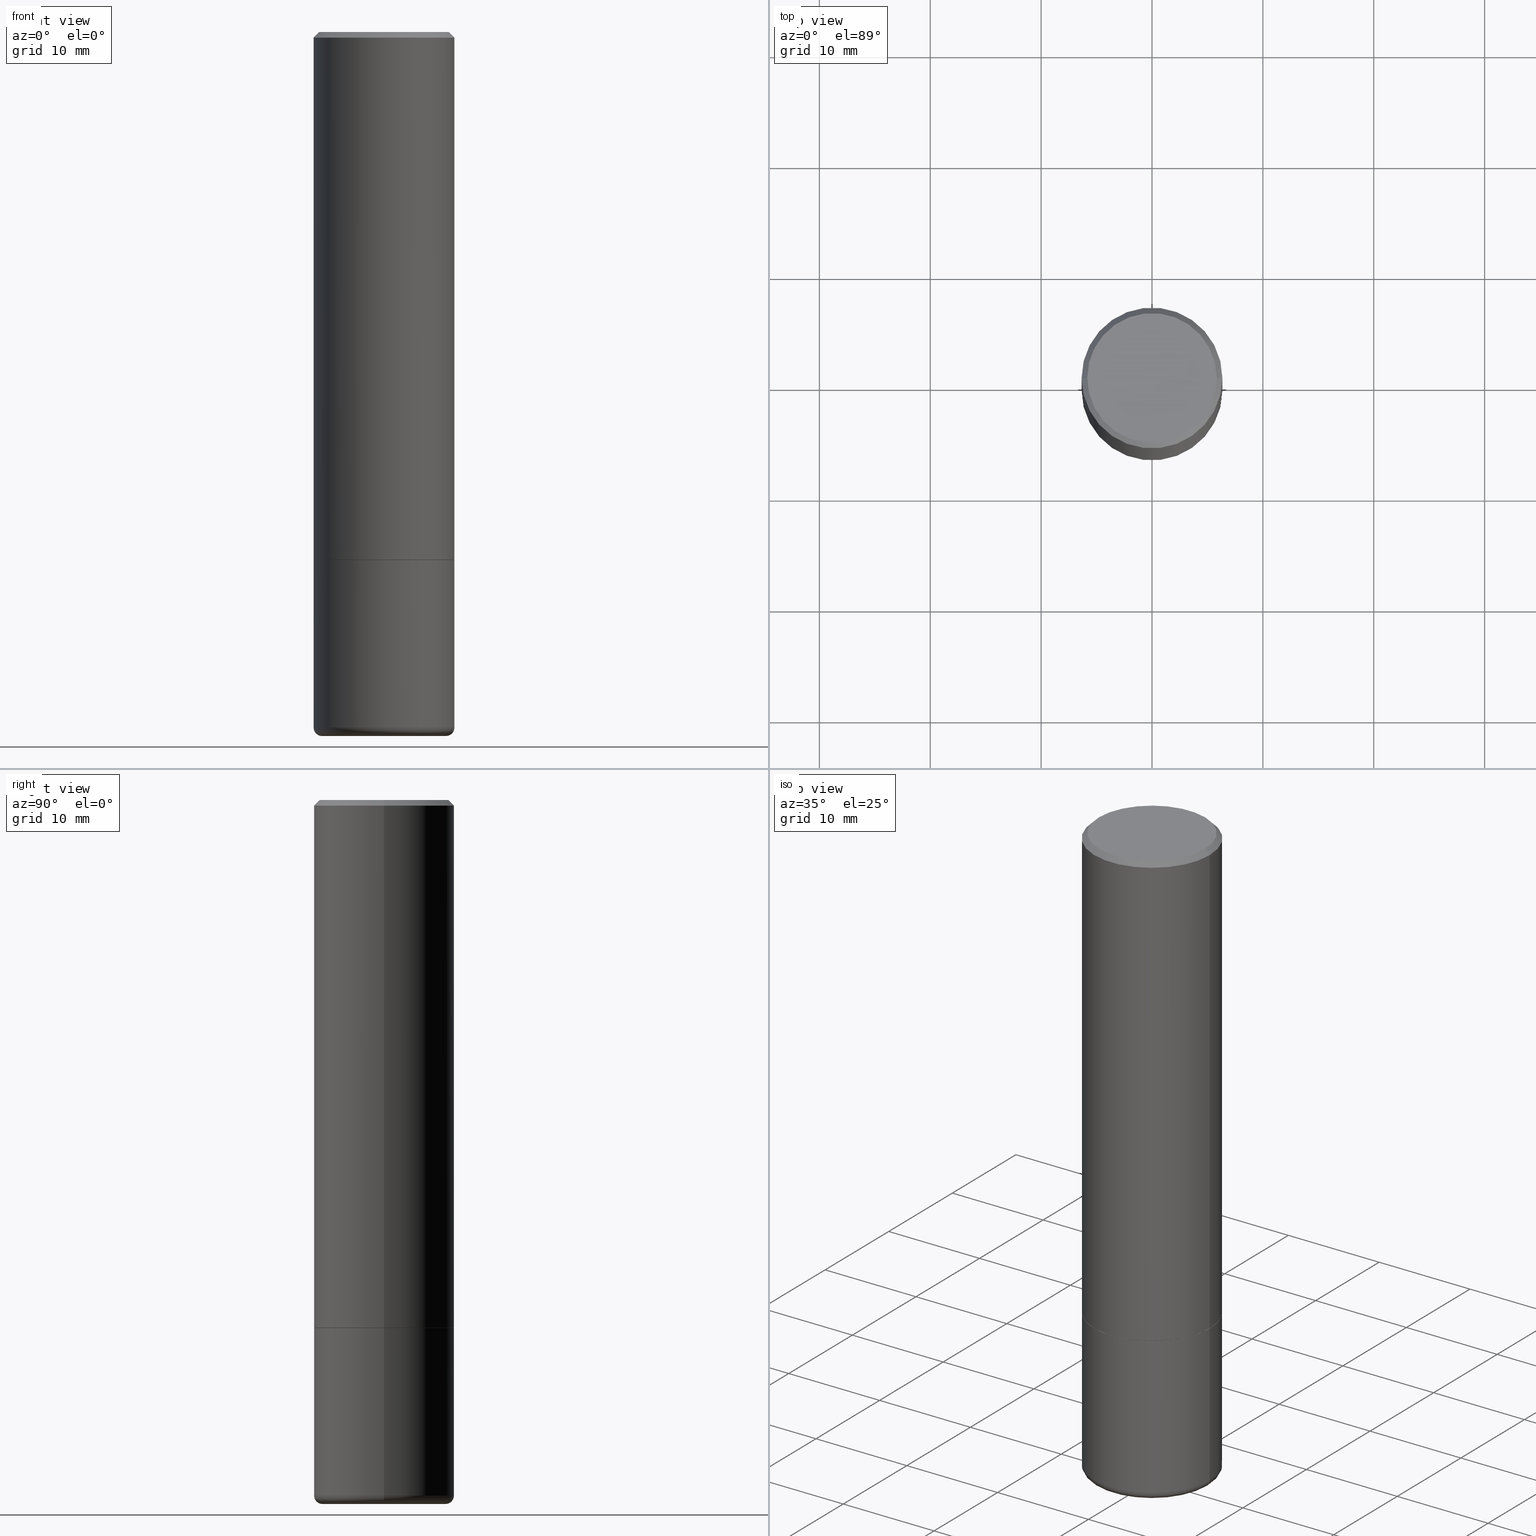
[diagram: canonical four-view strip — front | top / right | iso, engineering-drawing reading convention]
A machine part, canonical four-view strip (front | top / right | iso — engineering-drawing reading convention). The complete STEP part file that produces these views, byte-faithful:
ISO-10303-21;
HEADER;
FILE_DESCRIPTION (( 'STEP AP203' ),
    '1' );
FILE_NAME ('32595.STEP',
    '2022-04-26T19:39:14',
    ( '' ),
    ( '' ),
    'SwSTEP 2.0',
    'SolidWorks 2022',
    '' );
FILE_SCHEMA (( 'CONFIG_CONTROL_DESIGN' ));
ENDSEC;

DATA;
#1 = UNCERTAINTY_MEASURE_WITH_UNIT (LENGTH_MEASURE( 1.000000000000000082E-05 ), #372, 'distance_accuracy_value', 'NONE');
#2 = ORIENTED_EDGE ( 'NONE', *, *, #128, .T. ) ;
#3 = DIRECTION ( 'NONE',  ( -0.7071067811865466846, 2.468850131082247989E-15, -0.7071067811865483499 ) ) ;
#4 = ORIENTED_EDGE ( 'NONE', *, *, #132, .F. ) ;
#5 = EDGE_LOOP ( 'NONE', ( #367, #441, #438, #418 ) ) ;
#6 = TOROIDAL_SURFACE ( 'NONE', #254, 0.2199999999999999734, 0.03000000000000003011 ) ;
#7 = AXIS2_PLACEMENT_3D ( 'NONE', #52, #160, #264 ) ;
#8 = DIRECTION ( 'NONE',  ( 1.000000000000000000, -6.982962677686266711E-15, 4.883557194083113462E-29 ) ) ;
#9 = DIRECTION ( 'NONE',  ( -1.000000000000000000, 6.982962677686267499E-15, 0.000000000000000000 ) ) ;
#10 = CARTESIAN_POINT ( 'NONE',  ( 4.585254011597131119E-29, -6.546527510330898707E-15, -1.875000000000000000 ) ) ;
#11 = APPROVAL ( #118, 'UNSPECIFIED' ) ;
#12 = CARTESIAN_POINT ( 'NONE',  ( 1.023825917672807549E-27, -1.461752068453063202E-13, -41.86624319571459552 ) ) ;
#13 = AXIS2_PLACEMENT_3D ( 'NONE', #108, #253, #174 ) ;
#14 = DIRECTION ( 'NONE',  ( 1.000000000000000000, -6.982962677686266711E-15, 0.000000000000000000 ) ) ;
#15 = ADVANCED_FACE ( 'NONE', ( #110 ), #368, .F. ) ;
#16 = ADVANCED_FACE ( 'NONE', ( #112 ), #386, .F. ) ;
#17 = LINE ( 'NONE', #252, #324 ) ;
#18 = PLANE ( 'NONE',  #209 ) ;
#19 = EDGE_CURVE ( 'NONE', #409, #308, #208, .T. ) ;
#20 = AXIS2_PLACEMENT_3D ( 'NONE', #109, #143, #107 ) ;
#21 = DIRECTION ( 'NONE',  ( 1.000000000000000000, -6.982962677686266711E-15, 0.000000000000000000 ) ) ;
#22 = DIRECTION ( 'NONE',  ( -2.445468806185136597E-29, 3.491481338843145583E-15, 1.000000000000000000 ) ) ;
#23 = CARTESIAN_POINT ( 'NONE',  ( -0.2194764278068804253, -7.196091690014936529E-15, -2.499995430854692113 ) ) ;
#24 = APPLICATION_CONTEXT ( 'configuration controlled 3d designs of mechanical parts and assemblies' ) ;
#25 = EDGE_CURVE ( 'NONE', #64, #37, #145, .T. ) ;
#26 = APPROVAL_PERSON_ORGANIZATION ( #113, #11, #212 ) ;
#27 = DIRECTION ( 'NONE',  ( 1.000000000000000000, -6.982962677686266711E-15, 0.000000000000000000 ) ) ;
#28 = PRODUCT_DEFINITION ( 'UNKNOWN', '', #432, #361 ) ;
#29 = ORIENTED_EDGE ( 'NONE', *, *, #439, .F. ) ;
#30 = EDGE_CURVE ( 'NONE', #34, #69, #390, .T. ) ;
#31 = DIRECTION ( 'NONE',  ( 1.000000000000000000, -6.982962677686266711E-15, 0.000000000000000000 ) ) ;
#32 = ORIENTED_EDGE ( 'NONE', *, *, #425, .T. ) ;
#33 =( NAMED_UNIT ( * ) SI_UNIT ( $, .STERADIAN. ) SOLID_ANGLE_UNIT ( ) );
#34 = VERTEX_POINT ( 'NONE', #149 ) ;
#35 = AXIS2_PLACEMENT_3D ( 'NONE', #331, #259, #129 ) ;
#36 = ORIENTED_EDGE ( 'NONE', *, *, #436, .F. ) ;
#37 = VERTEX_POINT ( 'NONE', #420 ) ;
#38 = DIRECTION ( 'NONE',  ( -0.9998476951563914916, 6.920964387254063099E-15, -0.01745240643727605234 ) ) ;
#39 = AXIS2_PLACEMENT_3D ( 'NONE', #43, #314, #9 ) ;
#40 = CIRCLE ( 'NONE', #182, 0.2500000000000000000 ) ;
#41 = EDGE_CURVE ( 'NONE', #130, #34, #427, .T. ) ;
#42 = DIRECTION ( 'NONE',  ( 2.438088387897960049E-29, -3.491481338843145188E-15, -1.000000000000000000 ) ) ;
#43 = CARTESIAN_POINT ( 'NONE',  ( 4.890937612370289799E-31, -6.982962677686315028E-17, -0.02000000000000006981 ) ) ;
#44 = DIRECTION ( 'NONE',  ( 1.000000000000000000, 0.000000000000000000, 0.000000000000000000 ) ) ;
#45 = CARTESIAN_POINT ( 'NONE',  ( -1.043851414335219820E-46, 1.490343170380447200E-32, 4.268512490100411279E-18 ) ) ;
#46 = PERSON_AND_ORGANIZATION_ROLE ( 'creator' ) ;
#47 = AXIS2_PLACEMENT_3D ( 'NONE', #144, #83, #221 ) ;
#48 = LOCAL_TIME ( 15, 39, 14.00000000000000000, #412 ) ;
#49 = DIRECTION ( 'NONE',  ( 2.445468806185136597E-29, -3.491481338843145583E-15, -1.000000000000000000 ) ) ;
#50 = CARTESIAN_POINT ( 'NONE',  ( -0.2500000000000000000, -5.808886369236483886E-15, -1.875000000000000000 ) ) ;
#51 = ORIENTED_EDGE ( 'NONE', *, *, #30, .T. ) ;
#52 = CARTESIAN_POINT ( 'NONE',  ( 4.585254011597131119E-29, -6.546527510330898707E-15, -1.875000000000000000 ) ) ;
#53 = AXIS2_PLACEMENT_3D ( 'NONE', #140, #74, #276 ) ;
#54 = APPROVAL_PERSON_ORGANIZATION ( #97, #383, #337 ) ;
#55 = DIRECTION ( 'NONE',  ( 1.000000000000000000, -6.982962677686266711E-15, 0.000000000000000000 ) ) ;
#56 = CARTESIAN_POINT ( 'NONE',  ( 3.491684594698047041E-19, -8.715311615261214444E-15, -2.496164455557111417 ) ) ;
#57 = EDGE_CURVE ( 'NONE', #335, #414, #73, .T. ) ;
#58 = DATE_TIME_ROLE ( 'classification_date' ) ;
#59 = CYLINDRICAL_SURFACE ( 'NONE', #62, 0.2500000000000000000 ) ;
#60 = ADVANCED_FACE ( 'NONE', ( #184 ), #415, .T. ) ;
#61 = ORIENTED_EDGE ( 'NONE', *, *, #406, .T. ) ;
#62 = AXIS2_PLACEMENT_3D ( 'NONE', #437, #124, #292 ) ;
#63 = FACE_OUTER_BOUND ( 'NONE', #157, .T. ) ;
#64 = VERTEX_POINT ( 'NONE', #142 ) ;
#65 = EDGE_LOOP ( 'NONE', ( #417, #61, #306 ) ) ;
#66 = ORIENTED_EDGE ( 'NONE', *, *, #342, .T. ) ;
#67 =( GEOMETRIC_REPRESENTATION_CONTEXT ( 3 ) GLOBAL_UNCERTAINTY_ASSIGNED_CONTEXT ( ( #1 ) ) GLOBAL_UNIT_ASSIGNED_CONTEXT ( ( #372, #201, #33 ) ) REPRESENTATION_CONTEXT ( 'NONE', 'WORKASPACE' ) );
#68 = COORDINATED_UNIVERSAL_TIME_OFFSET ( 5, 0, .BEHIND. ) ;
#69 = VERTEX_POINT ( 'NONE', #176 ) ;
#70 = CARTESIAN_POINT ( 'NONE',  ( -0.2499999999999998890, 1.776356839400249676E-15, -1.229733772563726025E-29 ) ) ;
#71 = EDGE_CURVE ( 'NONE', #414, #130, #267, .T. ) ;
#72 = CYLINDRICAL_SURFACE ( 'NONE', #114, 0.2499999999999998890 ) ;
#73 = LINE ( 'NONE', #350, #166 ) ;
#74 = DIRECTION ( 'NONE',  ( -2.445468806185136597E-29, 3.491481338843145583E-15, 1.000000000000000000 ) ) ;
#75 = DATE_AND_TIME ( #424, #290 ) ;
#76 = DIRECTION ( 'NONE',  ( 1.000000000000000000, -6.982962677686265922E-15, 4.876176775795935793E-29 ) ) ;
#77 = ORIENTED_EDGE ( 'NONE', *, *, #41, .T. ) ;
#78 = CARTESIAN_POINT ( 'NONE',  ( 0.000000000000000000, 0.000000000000000000, 0.000000000000000000 ) ) ;
#79 = CYLINDRICAL_SURFACE ( 'NONE', #121, 0.2499999999999998890 ) ;
#80 = DIRECTION ( 'NONE',  ( -2.445468806185136597E-29, 3.491481338843145583E-15, 1.000000000000000000 ) ) ;
#81 = DATE_AND_TIME ( #215, #299 ) ;
#82 = DIRECTION ( 'NONE',  ( -2.445468806185136597E-29, 3.491481338843145583E-15, 1.000000000000000000 ) ) ;
#83 = DIRECTION ( 'NONE',  ( -2.445468806185136597E-29, 3.491481338843145583E-15, 1.000000000000000000 ) ) ;
#84 = EDGE_CURVE ( 'NONE', #37, #64, #194, .T. ) ;
#85 = DIRECTION ( 'NONE',  ( 1.000000000000000000, -6.982962677686266711E-15, 0.000000000000000000 ) ) ;
#86 = CIRCLE ( 'NONE', #167, 0.2194764278068817021 ) ;
#87 = ORIENTED_EDGE ( 'NONE', *, *, #41, .F. ) ;
#88 = FACE_OUTER_BOUND ( 'NONE', #204, .T. ) ;
#89 = SECURITY_CLASSIFICATION_LEVEL ( 'unclassified' ) ;
#90 = DIRECTION ( 'NONE',  ( -2.445468806185136597E-29, 3.491481338843145583E-15, 1.000000000000000000 ) ) ;
#91 = PERSON_AND_ORGANIZATION_ROLE ( 'creator' ) ;
#92 = FACE_OUTER_BOUND ( 'NONE', #165, .T. ) ;
#93 = ORIENTED_EDGE ( 'NONE', *, *, #425, .F. ) ;
#94 = CC_DESIGN_APPROVAL ( #383, ( #356 ) ) ;
#95 = VERTEX_POINT ( 'NONE', #50 ) ;
#96 = EDGE_LOOP ( 'NONE', ( #230, #246, #377, #169 ) ) ;
#97 = PERSON_AND_ORGANIZATION ( #435, #122 ) ;
#98 = EDGE_LOOP ( 'NONE', ( #133, #265, #275, #36 ) ) ;
#99 = CIRCLE ( 'NONE', #106, 0.2500000000000000000 ) ;
#100 = ORIENTED_EDGE ( 'NONE', *, *, #84, .T. ) ;
#101 = ADVANCED_FACE ( 'NONE', ( #322 ), #18, .F. ) ;
#102 = ADVANCED_FACE ( 'NONE', ( #419 ), #398, .T. ) ;
#103 = ORIENTED_EDGE ( 'NONE', *, *, #291, .T. ) ;
#104 = LINE ( 'NONE', #211, #205 ) ;
#105 = AXIS2_PLACEMENT_3D ( 'NONE', #175, #49, #318 ) ;
#106 = AXIS2_PLACEMENT_3D ( 'NONE', #430, #305, #329 ) ;
#107 = DIRECTION ( 'NONE',  ( 1.000000000000000000, -6.982962677686265133E-15, 0.000000000000000000 ) ) ;
#108 = CARTESIAN_POINT ( 'NONE',  ( -1.043851414335219820E-46, 1.490343170380447200E-32, 4.268512490100411279E-18 ) ) ;
#109 = CARTESIAN_POINT ( 'NONE',  ( 4.582808542790945516E-29, -6.543036028992054911E-15, -1.874000000000000110 ) ) ;
#110 = FACE_OUTER_BOUND ( 'NONE', #405, .T. ) ;
#111 = PERSON_AND_ORGANIZATION ( #435, #122 ) ;
#112 = FACE_OUTER_BOUND ( 'NONE', #429, .T. ) ;
#113 = PERSON_AND_ORGANIZATION ( #435, #122 ) ;
#114 = AXIS2_PLACEMENT_3D ( 'NONE', #352, #349, #147 ) ;
#115 = LOCAL_TIME ( 15, 39, 14.00000000000000000, #258 ) ;
#116 = EDGE_CURVE ( 'NONE', #223, #409, #240, .T. ) ;
#117 = LINE ( 'NONE', #440, #421 ) ;
#118 = APPROVAL_STATUS ( 'not_yet_approved' ) ;
#119 = DIRECTION ( 'NONE',  ( 2.445468806185136597E-29, -3.491481338843145583E-15, -1.000000000000000000 ) ) ;
#120 = AXIS2_PLACEMENT_3D ( 'NONE', #45, #353, #278 ) ;
#121 = AXIS2_PLACEMENT_3D ( 'NONE', #183, #82, #321 ) ;
#122 = ORGANIZATION ( 'UNSPECIFIED', 'UNSPECIFIED', '' ) ;
#123 = PERSON_AND_ORGANIZATION ( #435, #122 ) ;
#124 = DIRECTION ( 'NONE',  ( -2.445468806185136597E-29, 3.491481338843145583E-15, 1.000000000000000000 ) ) ;
#125 = PERSON_AND_ORGANIZATION ( #435, #122 ) ;
#126 = LINE ( 'NONE', #56, #362 ) ;
#127 = ORIENTED_EDGE ( 'NONE', *, *, #30, .F. ) ;
#128 = EDGE_CURVE ( 'NONE', #320, #95, #104, .T. ) ;
#129 = DIRECTION ( 'NONE',  ( 1.000000000000000000, -6.982962677686266711E-15, 4.883557194083113462E-29 ) ) ;
#130 = VERTEX_POINT ( 'NONE', #319 ) ;
#131 = CLOSED_SHELL ( 'NONE', ( #263, #138, #185, #102, #217, #60, #198, #101 ) ) ;
#132 = EDGE_CURVE ( 'NONE', #34, #320, #274, .T. ) ;
#133 = ORIENTED_EDGE ( 'NONE', *, *, #116, .T. ) ;
#134 = APPLICATION_PROTOCOL_DEFINITION ( 'international standard', 'config_control_design', 1994, #168 ) ;
#135 = VERTEX_POINT ( 'NONE', #358 ) ;
#136 = ADVANCED_FACE ( 'NONE', ( #186 ), #6, .T. ) ;
#137 = ORIENTED_EDGE ( 'NONE', *, *, #220, .T. ) ;
#138 = ADVANCED_FACE ( 'NONE', ( #376 ), #72, .T. ) ;
#139 = AXIS2_PLACEMENT_3D ( 'NONE', #360, #119, #229 ) ;
#140 = CARTESIAN_POINT ( 'NONE',  ( 4.582808542790945516E-29, -6.543036028992054911E-15, -1.874000000000000110 ) ) ;
#141 = PRODUCT ( '32595', '32595', '', ( #155 ) ) ;
#142 = CARTESIAN_POINT ( 'NONE',  ( -0.2299999999999997324, 1.640996229256270744E-15, 4.268512490089056766E-18 ) ) ;
#143 = DIRECTION ( 'NONE',  ( -2.445468806185136597E-29, 3.491481338843145583E-15, 1.000000000000000000 ) ) ;
#144 = CARTESIAN_POINT ( 'NONE',  ( 6.040307951277287977E-29, -8.623958906942569995E-15, -2.470000000000000195 ) ) ;
#145 = CIRCLE ( 'NONE', #13, 0.2299999999999997324 ) ;
#146 = TOROIDAL_SURFACE ( 'NONE', #35, 0.2199999999999999734, 0.03000000000000003011 ) ;
#147 = DIRECTION ( 'NONE',  ( 1.000000000000000000, -6.982962677686266711E-15, 4.876176775795935793E-29 ) ) ;
#148 = ORIENTED_EDGE ( 'NONE', *, *, #323, .F. ) ;
#149 = CARTESIAN_POINT ( 'NONE',  ( 0.2500000000000000000, -1.036969957636413667E-14, -2.470000000000000195 ) ) ;
#150 = CC_DESIGN_DATE_AND_TIME_ASSIGNMENT ( #200, #58, ( #356 ) ) ;
#151 = EDGE_LOOP ( 'NONE', ( #170, #32, #4, #87 ) ) ;
#152 = CIRCLE ( 'NONE', #20, 0.2500000000000000555 ) ;
#153 = DIRECTION ( 'NONE',  ( -2.445468806185136597E-29, 3.491481338843145583E-15, 1.000000000000000000 ) ) ;
#154 = CARTESIAN_POINT ( 'NONE',  ( -0.2500000000000000000, -6.847602067542320320E-15, -2.470000000000000195 ) ) ;
#155 = MECHANICAL_CONTEXT ( 'NONE', #168, 'mechanical' ) ;
#156 = DIRECTION ( 'NONE',  ( 7.105427357601001859E-15, 1.000000000000000000, -3.491481338843145583E-15 ) ) ;
#157 = EDGE_LOOP ( 'NONE', ( #93, #340, #77, #241 ) ) ;
#158 = CARTESIAN_POINT ( 'NONE',  ( 0.000000000000000000, 0.000000000000000000, 0.000000000000000000 ) ) ;
#159 = EDGE_LOOP ( 'NONE', ( #206, #2, #345, #127 ) ) ;
#160 = DIRECTION ( 'NONE',  ( -2.445468806185136597E-29, 3.491481338843145583E-15, 1.000000000000000000 ) ) ;
#161 = ORIENTED_EDGE ( 'NONE', *, *, #116, .F. ) ;
#162 = EDGE_CURVE ( 'NONE', #135, #308, #172, .T. ) ;
#163 = CALENDAR_DATE ( 2022, 26, 4 ) ;
#164 = LINE ( 'NONE', #238, #315 ) ;
#165 = EDGE_LOOP ( 'NONE', ( #332, #66, #51, #310 ) ) ;
#166 = VECTOR ( 'NONE', #38, 39.37007874015747433 ) ;
#167 = AXIS2_PLACEMENT_3D ( 'NONE', #431, #296, #31 ) ;
#168 = APPLICATION_CONTEXT ( 'configuration controlled 3d designs of mechanical parts and assemblies' ) ;
#169 = ORIENTED_EDGE ( 'NONE', *, *, #297, .T. ) ;
#170 = ORIENTED_EDGE ( 'NONE', *, *, #323, .T. ) ;
#171 = DIRECTION ( 'NONE',  ( -1.000000000000000000, 6.982962677686265922E-15, -4.876176775795935793E-29 ) ) ;
#172 = CIRCLE ( 'NONE', #257, 0.2499999999999997502 ) ;
#173 = LOCAL_TIME ( 15, 39, 14.00000000000000000, #68 ) ;
#174 = DIRECTION ( 'NONE',  ( 1.000000000000000000, -6.982962677686266711E-15, 4.876225828469314487E-29 ) ) ;
#175 = CARTESIAN_POINT ( 'NONE',  ( 4.890937612370289799E-31, -6.982962677686315028E-17, -0.02000000000000006981 ) ) ;
#176 = CARTESIAN_POINT ( 'NONE',  ( 0.2500000000000000000, -8.292268179752465385E-15, -1.875000000000000000 ) ) ;
#177 = DIRECTION ( 'NONE',  ( -2.445468806185136597E-29, 3.491481338843145583E-15, 1.000000000000000000 ) ) ;
#178 = DIRECTION ( 'NONE',  ( 1.000000000000000000, -6.982962677686262766E-15, 0.000000000000000000 ) ) ;
#179 = APPROVAL_ROLE ( '' ) ;
#180 = CIRCLE ( 'NONE', #7, 0.2500000000000000000 ) ;
#181 = CC_DESIGN_APPROVAL ( #231, ( #28 ) ) ;
#182 = AXIS2_PLACEMENT_3D ( 'NONE', #226, #22, #21 ) ;
#183 = CARTESIAN_POINT ( 'NONE',  ( 0.000000000000000000, 0.000000000000000000, 0.000000000000000000 ) ) ;
#184 = FACE_OUTER_BOUND ( 'NONE', #336, .T. ) ;
#185 = ADVANCED_FACE ( 'NONE', ( #288 ), #233, .T. ) ;
#186 = FACE_OUTER_BOUND ( 'NONE', #151, .T. ) ;
#187 = EDGE_CURVE ( 'NONE', #409, #223, #152, .T. ) ;
#188 = ORIENTED_EDGE ( 'NONE', *, *, #396, .F. ) ;
#189 = CARTESIAN_POINT ( 'NONE',  ( 4.585254011597131119E-29, -6.546527510330898707E-15, -1.875000000000000000 ) ) ;
#190 = LINE ( 'NONE', #334, #210 ) ;
#191 = PERSON_AND_ORGANIZATION_ROLE ( 'design_owner' ) ;
#192 = CARTESIAN_POINT ( 'NONE',  ( 6.104536134205047288E-29, -8.714962446801805905E-15, -2.496164455557111417 ) ) ;
#193 = CARTESIAN_POINT ( 'NONE',  ( -0.2489999999999999991, -4.771977643940026848E-15, -1.875000000000000000 ) ) ;
#194 = CIRCLE ( 'NONE', #120, 0.2299999999999997324 ) ;
#195 = DIRECTION ( 'NONE',  ( -2.445468806185136597E-29, 3.491481338843145583E-15, 1.000000000000000000 ) ) ;
#196 = ORIENTED_EDGE ( 'NONE', *, *, #302, .T. ) ;
#197 = CARTESIAN_POINT ( 'NONE',  ( 0.2500000000000000555, -8.288776698413622377E-15, -1.874000000000000110 ) ) ;
#198 = ADVANCED_FACE ( 'NONE', ( #248 ), #389, .F. ) ;
#199 = ORIENTED_EDGE ( 'NONE', *, *, #162, .T. ) ;
#200 = DATE_AND_TIME ( #163, #48 ) ;
#201 =( NAMED_UNIT ( * ) PLANE_ANGLE_UNIT ( ) SI_UNIT ( $, .RADIAN. ) );
#202 = ORIENTED_EDGE ( 'NONE', *, *, #187, .F. ) ;
#203 = LENGTH_MEASURE_WITH_UNIT ( LENGTH_MEASURE( 0.02539999999999999897 ), #236 );
#204 = EDGE_LOOP ( 'NONE', ( #270, #304, #161, #411 ) ) ;
#205 = VECTOR ( 'NONE', #348, 39.37007874015748143 ) ;
#206 = ORIENTED_EDGE ( 'NONE', *, *, #132, .T. ) ;
#207 = CARTESIAN_POINT ( 'NONE',  ( 1.606081415867839292E-15, 0.2299999999999997324, -8.009064516888723911E-16 ) ) ;
#208 = LINE ( 'NONE', #70, #311 ) ;
#209 = AXIS2_PLACEMENT_3D ( 'NONE', #207, #343, #171 ) ;
#210 = VECTOR ( 'NONE', #370, 39.37007874015748854 ) ;
#211 = CARTESIAN_POINT ( 'NONE',  ( -0.2500000000000000000, 1.776356839400250465E-15, -1.229733772563726445E-29 ) ) ;
#212 = APPROVAL_ROLE ( '' ) ;
#213 = FACE_OUTER_BOUND ( 'NONE', #5, .T. ) ;
#214 = DIRECTION ( 'NONE',  ( -6.982962677686266711E-15, -1.000000000000000000, 3.491481338843145583E-15 ) ) ;
#215 = CALENDAR_DATE ( 2022, 26, 4 ) ;
#216 = CARTESIAN_POINT ( 'NONE',  ( 6.040307951277287977E-29, -8.623958906942569995E-15, -2.470000000000000195 ) ) ;
#217 = ADVANCED_FACE ( 'NONE', ( #213 ), #79, .T. ) ;
#218 = DIRECTION ( 'NONE',  ( 1.000000000000000000, -6.982962677686266711E-15, 0.000000000000000000 ) ) ;
#219 = APPROVAL_DATE_TIME ( #81, #11 ) ;
#220 = EDGE_CURVE ( 'NONE', #237, #223, #17, .T. ) ;
#221 = DIRECTION ( 'NONE',  ( 1.000000000000000000, -6.982962677686266711E-15, 0.000000000000000000 ) ) ;
#222 = DIRECTION ( 'NONE',  ( 1.000000000000000000, -6.982962677686267499E-15, 0.000000000000000000 ) ) ;
#223 = VERTEX_POINT ( 'NONE', #197 ) ;
#224 = FACE_OUTER_BOUND ( 'NONE', #65, .T. ) ;
#225 = AXIS2_PLACEMENT_3D ( 'NONE', #261, #156, #301 ) ;
#226 = CARTESIAN_POINT ( 'NONE',  ( 4.585254011597131119E-29, -6.546527510330898707E-15, -1.875000000000000000 ) ) ;
#227 = CARTESIAN_POINT ( 'NONE',  ( 4.585254011597131119E-29, -6.546527510330898707E-15, -1.875000000000000000 ) ) ;
#228 = APPROVAL_STATUS ( 'not_yet_approved' ) ;
#229 = DIRECTION ( 'NONE',  ( -1.000000000000000000, 6.982962677686266711E-15, 0.000000000000000000 ) ) ;
#230 = ORIENTED_EDGE ( 'NONE', *, *, #380, .F. ) ;
#231 = APPROVAL ( #391, 'UNSPECIFIED' ) ;
#232 = DIRECTION ( 'NONE',  ( 1.000000000000000000, -6.982962677686267499E-15, 0.000000000000000000 ) ) ;
#233 = CONICAL_SURFACE ( 'NONE', #105, 0.2499999999999997502, 0.7853981633974471688 ) ;
#234 = CONICAL_SURFACE ( 'NONE', #416, 0.2489999999999999991, 0.7853981633974311816 ) ;
#235 = ORIENTED_EDGE ( 'NONE', *, *, #302, .F. ) ;
#236 =( LENGTH_UNIT ( ) NAMED_UNIT ( * ) SI_UNIT ( $, .METRE. ) );
#237 = VERTEX_POINT ( 'NONE', #326 ) ;
#238 = CARTESIAN_POINT ( 'NONE',  ( -0.2499999999999997502, 1.675911042644701999E-15, -0.02000000000000006981 ) ) ;
#239 = EDGE_LOOP ( 'NONE', ( #188, #235 ) ) ;
#240 = CIRCLE ( 'NONE', #53, 0.2500000000000000555 ) ;
#241 = ORIENTED_EDGE ( 'NONE', *, *, #342, .F. ) ;
#242 = CC_DESIGN_APPROVAL ( #11, ( #432 ) ) ;
#243 = EDGE_LOOP ( 'NONE', ( #371, #100 ) ) ;
#244 = DIRECTION ( 'NONE',  ( -2.445468806185136597E-29, 3.491481338843145583E-15, 1.000000000000000000 ) ) ;
#245 = ADVANCED_FACE ( 'NONE', ( #224 ), #247, .F. ) ;
#246 = ORIENTED_EDGE ( 'NONE', *, *, #25, .F. ) ;
#247 = CONICAL_SURFACE ( 'NONE', #139, 2255.510300424564321, 1.553343034274960788 ) ;
#248 = FACE_OUTER_BOUND ( 'NONE', #239, .T. ) ;
#249 = DIRECTION ( 'NONE',  ( -1.000000000000000000, 6.982962677686266711E-15, 0.000000000000000000 ) ) ;
#250 = DIRECTION ( 'NONE',  ( -1.000000000000000000, 6.982962677686265922E-15, -4.876176775795935793E-29 ) ) ;
#251 = PRODUCT_RELATED_PRODUCT_CATEGORY ( 'detail', '', ( #141 ) ) ;
#252 = CARTESIAN_POINT ( 'NONE',  ( 0.2489999999999999991, -8.285285217074779370E-15, -1.875000000000000000 ) ) ;
#253 = DIRECTION ( 'NONE',  ( -2.445468806185136597E-29, 3.491481338843145583E-15, 1.000000000000000000 ) ) ;
#254 = AXIS2_PLACEMENT_3D ( 'NONE', #216, #195, #8 ) ;
#255 = CIRCLE ( 'NONE', #381, 0.2489999999999999991 ) ;
#256 = DIRECTION ( 'NONE',  ( 0.9998476951563914916, -6.920387862090559512E-15, -0.01745240643727605234 ) ) ;
#257 = AXIS2_PLACEMENT_3D ( 'NONE', #279, #177, #222 ) ;
#258 = COORDINATED_UNIVERSAL_TIME_OFFSET ( 5, 0, .BEHIND. ) ;
#259 = DIRECTION ( 'NONE',  ( -2.445468806185136597E-29, 3.491481338843145583E-15, 1.000000000000000000 ) ) ;
#260 = COORDINATED_UNIVERSAL_TIME_OFFSET ( 5, 0, .BEHIND. ) ;
#261 = CARTESIAN_POINT ( 'NONE',  ( -0.2199999999999999734, -7.060764888270350565E-15, -2.470000000000000195 ) ) ;
#262 = EDGE_CURVE ( 'NONE', #95, #69, #180, .T. ) ;
#263 = ADVANCED_FACE ( 'NONE', ( #88 ), #234, .T. ) ;
#264 = DIRECTION ( 'NONE',  ( 1.000000000000000000, -6.982962677686266711E-15, 0.000000000000000000 ) ) ;
#265 = ORIENTED_EDGE ( 'NONE', *, *, #19, .T. ) ;
#266 = CARTESIAN_POINT ( 'NONE',  ( -0.2500000000000000000, -1.530075988484207851E-15, -1.874000000000000110 ) ) ;
#267 = CIRCLE ( 'NONE', #282, 0.2194764278068817021 ) ;
#268 = APPROVAL_PERSON_ORGANIZATION ( #400, #231, #179 ) ;
#269 = ORIENTED_EDGE ( 'NONE', *, *, #84, .F. ) ;
#270 = ORIENTED_EDGE ( 'NONE', *, *, #396, .T. ) ;
#271 = PRODUCT_DEFINITION_SHAPE ( 'NONE', 'NONE',  #28 ) ;
#272 = PERSON_AND_ORGANIZATION_ROLE ( 'design_supplier' ) ;
#273 = ORIENTED_EDGE ( 'NONE', *, *, #294, .F. ) ;
#274 = CIRCLE ( 'NONE', #47, 0.2500000000000000000 ) ;
#275 = ORIENTED_EDGE ( 'NONE', *, *, #162, .F. ) ;
#276 = DIRECTION ( 'NONE',  ( 1.000000000000000000, -6.982962677686265133E-15, 0.000000000000000000 ) ) ;
#277 = ADVANCED_FACE ( 'NONE', ( #92 ), #59, .T. ) ;
#278 = DIRECTION ( 'NONE',  ( 1.000000000000000000, -6.982962677686266711E-15, 4.876225828469314487E-29 ) ) ;
#279 = CARTESIAN_POINT ( 'NONE',  ( 4.890937612370289799E-31, -6.982962677686315028E-17, -0.02000000000000006981 ) ) ;
#280 = CARTESIAN_POINT ( 'NONE',  ( 1.745740669421612234E-15, 0.2499999999999934497, -1.875000000000000888 ) ) ;
#281 = COORDINATED_UNIVERSAL_TIME_OFFSET ( 5, 0, .BEHIND. ) ;
#282 = AXIS2_PLACEMENT_3D ( 'NONE', #385, #244, #14 ) ;
#283 = AXIS2_PLACEMENT_3D ( 'NONE', #158, #90, #303 ) ;
#284 = DIRECTION ( 'NONE',  ( -2.445468806185136877E-29, 3.491481338843145188E-15, 1.000000000000000000 ) ) ;
#285 = DIRECTION ( 'NONE',  ( 0.000000000000000000, 0.000000000000000000, 1.000000000000000000 ) ) ;
#286 = ORIENTED_EDGE ( 'NONE', *, *, #406, .F. ) ;
#287 = APPROVAL_DATE_TIME ( #300, #231 ) ;
#288 = FACE_OUTER_BOUND ( 'NONE', #307, .T. ) ;
#289 = VECTOR ( 'NONE', #388, 39.37007874015748143 ) ;
#290 = LOCAL_TIME ( 15, 39, 14.00000000000000000, #260 ) ;
#291 = EDGE_CURVE ( 'NONE', #69, #95, #40, .T. ) ;
#292 = DIRECTION ( 'NONE',  ( 1.000000000000000000, -6.982962677686266711E-15, 4.876176775795935793E-29 ) ) ;
#293 = DIMENSIONAL_EXPONENTS ( 1.000000000000000000, 0.000000000000000000, 0.000000000000000000, 0.000000000000000000, 0.000000000000000000, 0.000000000000000000, 0.000000000000000000 ) ;
#294 = EDGE_CURVE ( 'NONE', #339, #409, #190, .T. ) ;
#295 = DATE_TIME_ROLE ( 'creation_date' ) ;
#296 = DIRECTION ( 'NONE',  ( -2.445468806185136597E-29, 3.491481338843145583E-15, 1.000000000000000000 ) ) ;
#297 = EDGE_CURVE ( 'NONE', #308, #135, #428, .T. ) ;
#298 = CLOSED_SHELL ( 'NONE', ( #426, #136, #245, #15, #359, #277, #16 ) ) ;
#299 = LOCAL_TIME ( 15, 39, 14.00000000000000000, #281 ) ;
#300 = DATE_AND_TIME ( #328, #115 ) ;
#301 = DIRECTION ( 'NONE',  ( -1.000000000000000000, 7.105427357601017636E-15, 0.000000000000000000 ) ) ;
#302 = EDGE_CURVE ( 'NONE', #339, #237, #255, .T. ) ;
#303 = DIRECTION ( 'NONE',  ( 1.000000000000000000, -6.982962677686266711E-15, 4.876176775795935793E-29 ) ) ;
#304 = ORIENTED_EDGE ( 'NONE', *, *, #294, .T. ) ;
#305 = DIRECTION ( 'NONE',  ( -2.445468806185136597E-29, 3.491481338843145583E-15, 1.000000000000000000 ) ) ;
#306 = ORIENTED_EDGE ( 'NONE', *, *, #71, .F. ) ;
#307 = EDGE_LOOP ( 'NONE', ( #269, #374, #199, #29 ) ) ;
#308 = VERTEX_POINT ( 'NONE', #434 ) ;
#309 = DATE_AND_TIME ( #330, #173 ) ;
#310 = ORIENTED_EDGE ( 'NONE', *, *, #262, .F. ) ;
#311 = VECTOR ( 'NONE', #284, 39.37007874015748143 ) ;
#312 = ADVANCED_BREP_SHAPE_REPRESENTATION ( '32595', ( #347, #351, #433 ), #67 ) ;
#313 = CC_DESIGN_PERSON_AND_ORGANIZATION_ASSIGNMENT ( #123, #46, ( #28 ) ) ;
#314 = DIRECTION ( 'NONE',  ( 2.445468806185136597E-29, -3.491481338843145583E-15, -1.000000000000000000 ) ) ;
#315 = VECTOR ( 'NONE', #3, 39.37007874015748143 ) ;
#316 = CC_DESIGN_PERSON_AND_ORGANIZATION_ASSIGNMENT ( #111, #191, ( #141 ) ) ;
#317 = DIRECTION ( 'NONE',  ( 2.445468806185136597E-29, -3.491481338843145583E-15, -1.000000000000000000 ) ) ;
#318 = DIRECTION ( 'NONE',  ( -1.000000000000000000, 6.982962677686267499E-15, 0.000000000000000000 ) ) ;
#319 = CARTESIAN_POINT ( 'NONE',  ( 0.2194764278068804253, -1.023440498754943821E-14, -2.499995430854692113 ) ) ;
#320 = VERTEX_POINT ( 'NONE', #154 ) ;
#321 = DIRECTION ( 'NONE',  ( 1.000000000000000000, -6.982962677686266711E-15, 4.876176775795935793E-29 ) ) ;
#322 = FACE_OUTER_BOUND ( 'NONE', #243, .T. ) ;
#323 = EDGE_CURVE ( 'NONE', #130, #414, #86, .T. ) ;
#324 = VECTOR ( 'NONE', #357, 39.37007874015748854 ) ;
#325 = CIRCLE ( 'NONE', #338, 0.2489999999999999991 ) ;
#326 = CARTESIAN_POINT ( 'NONE',  ( 0.2489999999999999991, -8.285285217074779370E-15, -1.875000000000000000 ) ) ;
#327 = CC_DESIGN_PERSON_AND_ORGANIZATION_ASSIGNMENT ( #125, #272, ( #432 ) ) ;
#328 = CALENDAR_DATE ( 2022, 26, 4 ) ;
#329 = DIRECTION ( 'NONE',  ( 1.000000000000000000, -6.982962677686266711E-15, 0.000000000000000000 ) ) ;
#330 = CALENDAR_DATE ( 2022, 26, 4 ) ;
#331 = CARTESIAN_POINT ( 'NONE',  ( 6.040307951277287977E-29, -8.623958906942569995E-15, -2.470000000000000195 ) ) ;
#332 = ORIENTED_EDGE ( 'NONE', *, *, #128, .F. ) ;
#333 = PERSON_AND_ORGANIZATION_ROLE ( 'classification_officer' ) ;
#334 = CARTESIAN_POINT ( 'NONE',  ( -0.2489999999999999991, -4.777276098288249250E-15, -1.875000000000000000 ) ) ;
#335 = VERTEX_POINT ( 'NONE', #192 ) ;
#336 = EDGE_LOOP ( 'NONE', ( #273, #196, #137, #202 ) ) ;
#337 = APPROVAL_ROLE ( '' ) ;
#338 = AXIS2_PLACEMENT_3D ( 'NONE', #227, #397, #27 ) ;
#339 = VERTEX_POINT ( 'NONE', #193 ) ;
#340 = ORIENTED_EDGE ( 'NONE', *, *, #71, .T. ) ;
#341 = CC_DESIGN_PERSON_AND_ORGANIZATION_ASSIGNMENT ( #407, #333, ( #356 ) ) ;
#342 = EDGE_CURVE ( 'NONE', #320, #34, #99, .T. ) ;
#343 = DIRECTION ( 'NONE',  ( 2.438088387897960049E-29, -3.491481338843145188E-15, -1.000000000000000000 ) ) ;
#344 = AXIS2_PLACEMENT_3D ( 'NONE', #423, #214, #178 ) ;
#345 = ORIENTED_EDGE ( 'NONE', *, *, #291, .F. ) ;
#346 = CC_DESIGN_SECURITY_CLASSIFICATION ( #356, ( #432 ) ) ;
#347 = MANIFOLD_SOLID_BREP ( 'Body-Move/Copy2[1]', #298 ) ;
#348 = DIRECTION ( 'NONE',  ( -2.445468806185136877E-29, 3.491481338843145188E-15, 1.000000000000000000 ) ) ;
#349 = DIRECTION ( 'NONE',  ( -2.445468806185136597E-29, 3.491481338843145583E-15, 1.000000000000000000 ) ) ;
#350 = CARTESIAN_POINT ( 'NONE',  ( -3.491684593477188012E-19, -8.715311615261214444E-15, -2.496164455557111417 ) ) ;
#351 = MANIFOLD_SOLID_BREP ( 'Body-Move/Copy2[2]', #131 ) ;
#352 = CARTESIAN_POINT ( 'NONE',  ( 0.000000000000000000, 0.000000000000000000, 0.000000000000000000 ) ) ;
#353 = DIRECTION ( 'NONE',  ( -2.445468806185136597E-29, 3.491481338843145583E-15, 1.000000000000000000 ) ) ;
#354 = AXIS2_PLACEMENT_3D ( 'NONE', #12, #317, #249 ) ;
#355 = PERSON_AND_ORGANIZATION ( #435, #122 ) ;
#356 = SECURITY_CLASSIFICATION ( '', '', #89 ) ;
#357 = DIRECTION ( 'NONE',  ( 0.7071067811865353603, -2.468850131082130054E-15, 0.7071067811865595631 ) ) ;
#358 = CARTESIAN_POINT ( 'NONE',  ( 0.2499999999999997502, -1.784954126219744217E-15, -0.02000000000000006981 ) ) ;
#359 = ADVANCED_FACE ( 'NONE', ( #63 ), #146, .T. ) ;
#360 = CARTESIAN_POINT ( 'NONE',  ( 1.023825917672807549E-27, -1.461752068453063202E-13, -41.86624319571459552 ) ) ;
#361 = DESIGN_CONTEXT ( 'detailed design', #24, 'design' ) ;
#362 = VECTOR ( 'NONE', #256, 39.37007874015747433 ) ;
#363 = APPLICATION_PROTOCOL_DEFINITION ( 'international standard', 'config_control_design', 1994, #24 ) ;
#364 = CARTESIAN_POINT ( 'NONE',  ( 4.890937612370289799E-31, -6.982962677686315028E-17, -0.02000000000000006981 ) ) ;
#365 = CARTESIAN_POINT ( 'NONE',  ( 4.585254011597131119E-29, -6.546527510330898707E-15, -1.875000000000000000 ) ) ;
#366 = DIRECTION ( 'NONE',  ( 0.7071067811865466846, -7.319954787623252890E-15, -0.7071067811865483499 ) ) ;
#367 = ORIENTED_EDGE ( 'NONE', *, *, #19, .F. ) ;
#368 = CONICAL_SURFACE ( 'NONE', #354, 2255.510300424564321, 1.553343034274960788 ) ;
#369 = VECTOR ( 'NONE', #375, 39.37007874015748143 ) ;
#370 = DIRECTION ( 'NONE',  ( -0.7071067811865353603, 7.493145998870309984E-15, 0.7071067811865595631 ) ) ;
#371 = ORIENTED_EDGE ( 'NONE', *, *, #25, .T. ) ;
#372 =( CONVERSION_BASED_UNIT ( 'INCH', #203 ) LENGTH_UNIT ( ) NAMED_UNIT ( #293 ) );
#373 = CC_DESIGN_PERSON_AND_ORGANIZATION_ASSIGNMENT ( #355, #91, ( #432 ) ) ;
#374 = ORIENTED_EDGE ( 'NONE', *, *, #380, .T. ) ;
#375 = DIRECTION ( 'NONE',  ( -2.445468806185136877E-29, 3.491481338843145188E-15, 1.000000000000000000 ) ) ;
#376 = FACE_OUTER_BOUND ( 'NONE', #98, .T. ) ;
#377 = ORIENTED_EDGE ( 'NONE', *, *, #439, .T. ) ;
#378 = AXIS2_PLACEMENT_3D ( 'NONE', #387, #392, #76 ) ;
#379 = APPROVAL_DATE_TIME ( #309, #383 ) ;
#380 = EDGE_CURVE ( 'NONE', #37, #135, #117, .T. ) ;
#381 = AXIS2_PLACEMENT_3D ( 'NONE', #365, #404, #55 ) ;
#382 = ORIENTED_EDGE ( 'NONE', *, *, #262, .T. ) ;
#383 = APPROVAL ( #228, 'UNSPECIFIED' ) ;
#384 = ORIENTED_EDGE ( 'NONE', *, *, #57, .T. ) ;
#385 = CARTESIAN_POINT ( 'NONE',  ( 6.113660841760519813E-29, -8.728687394022285715E-15, -2.499995430854692113 ) ) ;
#386 = PLANE ( 'NONE',  #393 ) ;
#387 = CARTESIAN_POINT ( 'NONE',  ( 4.585254011597131119E-29, -6.546527510330898707E-15, -1.875000000000000000 ) ) ;
#388 = DIRECTION ( 'NONE',  ( -2.445468806185136877E-29, 3.491481338843145188E-15, 1.000000000000000000 ) ) ;
#389 = PLANE ( 'NONE',  #378 ) ;
#390 = LINE ( 'NONE', #422, #289 ) ;
#391 = APPROVAL_STATUS ( 'not_yet_approved' ) ;
#392 = DIRECTION ( 'NONE',  ( -2.438088387897960049E-29, 3.491481338843145188E-15, 1.000000000000000000 ) ) ;
#393 = AXIS2_PLACEMENT_3D ( 'NONE', #280, #42, #250 ) ;
#394 = AXIS2_PLACEMENT_3D ( 'NONE', #364, #153, #232 ) ;
#395 = CC_DESIGN_DATE_AND_TIME_ASSIGNMENT ( #75, #295, ( #28 ) ) ;
#396 = EDGE_CURVE ( 'NONE', #237, #339, #325, .T. ) ;
#397 = DIRECTION ( 'NONE',  ( -2.445468806185136597E-29, 3.491481338843145583E-15, 1.000000000000000000 ) ) ;
#398 = CONICAL_SURFACE ( 'NONE', #39, 0.2499999999999997502, 0.7853981633974471688 ) ;
#399 = CIRCLE ( 'NONE', #225, 0.03000000000000002318 ) ;
#400 = PERSON_AND_ORGANIZATION ( #435, #122 ) ;
#401 = DIRECTION ( 'NONE',  ( -2.445468806185136597E-29, 3.491481338843145583E-15, 1.000000000000000000 ) ) ;
#402 = CYLINDRICAL_SURFACE ( 'NONE', #283, 0.2500000000000000000 ) ;
#403 = SHAPE_DEFINITION_REPRESENTATION ( #271, #312 ) ;
#404 = DIRECTION ( 'NONE',  ( -2.445468806185136597E-29, 3.491481338843145583E-15, 1.000000000000000000 ) ) ;
#405 = EDGE_LOOP ( 'NONE', ( #286, #384, #148 ) ) ;
#406 = EDGE_CURVE ( 'NONE', #335, #130, #126, .T. ) ;
#407 = PERSON_AND_ORGANIZATION ( #435, #122 ) ;
#408 = FACE_OUTER_BOUND ( 'NONE', #159, .T. ) ;
#409 = VERTEX_POINT ( 'NONE', #266 ) ;
#410 = LINE ( 'NONE', #413, #369 ) ;
#411 = ORIENTED_EDGE ( 'NONE', *, *, #220, .F. ) ;
#412 = COORDINATED_UNIVERSAL_TIME_OFFSET ( 5, 0, .BEHIND. ) ;
#413 = CARTESIAN_POINT ( 'NONE',  ( 0.2499999999999998890, -1.745740669421565889E-15, 1.219044193948983388E-29 ) ) ;
#414 = VERTEX_POINT ( 'NONE', #23 ) ;
#415 = CONICAL_SURFACE ( 'NONE', #442, 0.2489999999999999991, 0.7853981633974311816 ) ;
#416 = AXIS2_PLACEMENT_3D ( 'NONE', #189, #401, #85 ) ;
#417 = ORIENTED_EDGE ( 'NONE', *, *, #57, .F. ) ;
#418 = ORIENTED_EDGE ( 'NONE', *, *, #297, .F. ) ;
#419 = FACE_OUTER_BOUND ( 'NONE', #96, .T. ) ;
#420 = CARTESIAN_POINT ( 'NONE',  ( 0.2299999999999997324, -1.681434332853597236E-15, 4.268512490111905999E-18 ) ) ;
#421 = VECTOR ( 'NONE', #366, 39.37007874015748143 ) ;
#422 = CARTESIAN_POINT ( 'NONE',  ( 0.2500000000000000000, -1.745740669421566678E-15, 1.219044193948983948E-29 ) ) ;
#423 = CARTESIAN_POINT ( 'NONE',  ( 0.2199999999999999734, -1.016021069603354993E-14, -2.470000000000000195 ) ) ;
#424 = CALENDAR_DATE ( 2022, 26, 4 ) ;
#425 = EDGE_CURVE ( 'NONE', #414, #320, #399, .T. ) ;
#426 = ADVANCED_FACE ( 'NONE', ( #408 ), #402, .T. ) ;
#427 = CIRCLE ( 'NONE', #344, 0.03000000000000002318 ) ;
#428 = CIRCLE ( 'NONE', #394, 0.2499999999999997502 ) ;
#429 = EDGE_LOOP ( 'NONE', ( #103, #382 ) ) ;
#430 = CARTESIAN_POINT ( 'NONE',  ( 6.040307951277287977E-29, -8.623958906942569995E-15, -2.470000000000000195 ) ) ;
#431 = CARTESIAN_POINT ( 'NONE',  ( 6.113660841760519813E-29, -8.728687394022285715E-15, -2.499995430854692113 ) ) ;
#432 = PRODUCT_DEFINITION_FORMATION_WITH_SPECIFIED_SOURCE ( 'ANY', '', #141, .NOT_KNOWN. ) ;
#433 = AXIS2_PLACEMENT_3D ( 'NONE', #78, #285, #44 ) ;
#434 = CARTESIAN_POINT ( 'NONE',  ( -0.2499999999999997502, 1.675911042644701999E-15, -0.02000000000000006981 ) ) ;
#435 = PERSON ( 'UNSPECIFIED', 'UNSPECIFIED', 'UNSPECIFIED', ('UNSPECIFIED'), ('UNSPECIFIED'), ('UNSPECIFIED') ) ;
#436 = EDGE_CURVE ( 'NONE', #223, #135, #410, .T. ) ;
#437 = CARTESIAN_POINT ( 'NONE',  ( 0.000000000000000000, 0.000000000000000000, 0.000000000000000000 ) ) ;
#438 = ORIENTED_EDGE ( 'NONE', *, *, #436, .T. ) ;
#439 = EDGE_CURVE ( 'NONE', #64, #308, #164, .T. ) ;
#440 = CARTESIAN_POINT ( 'NONE',  ( 0.2499999999999997502, -1.784954126219744217E-15, -0.02000000000000006981 ) ) ;
#441 = ORIENTED_EDGE ( 'NONE', *, *, #187, .T. ) ;
#442 = AXIS2_PLACEMENT_3D ( 'NONE', #10, #80, #218 ) ;
ENDSEC;
END-ISO-10303-21;
